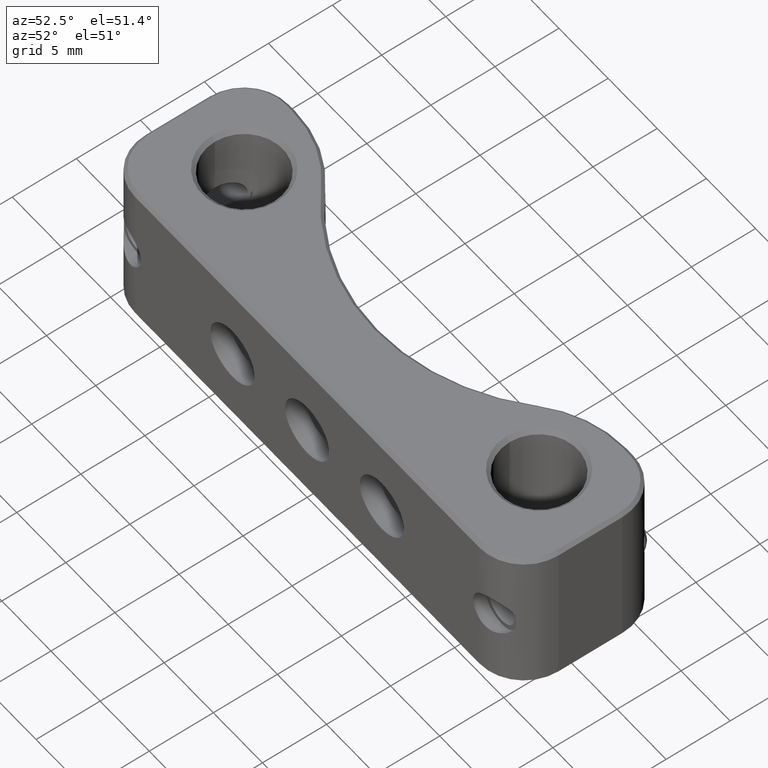
[diagram: clean part render]
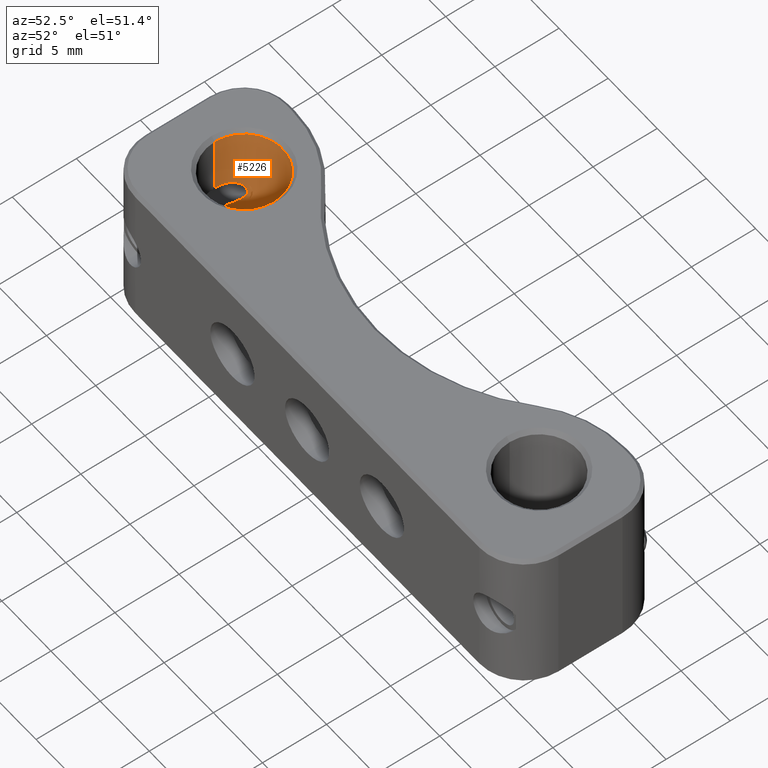
[diagram: same view with one face highlighted and labeled with its STEP entity id]
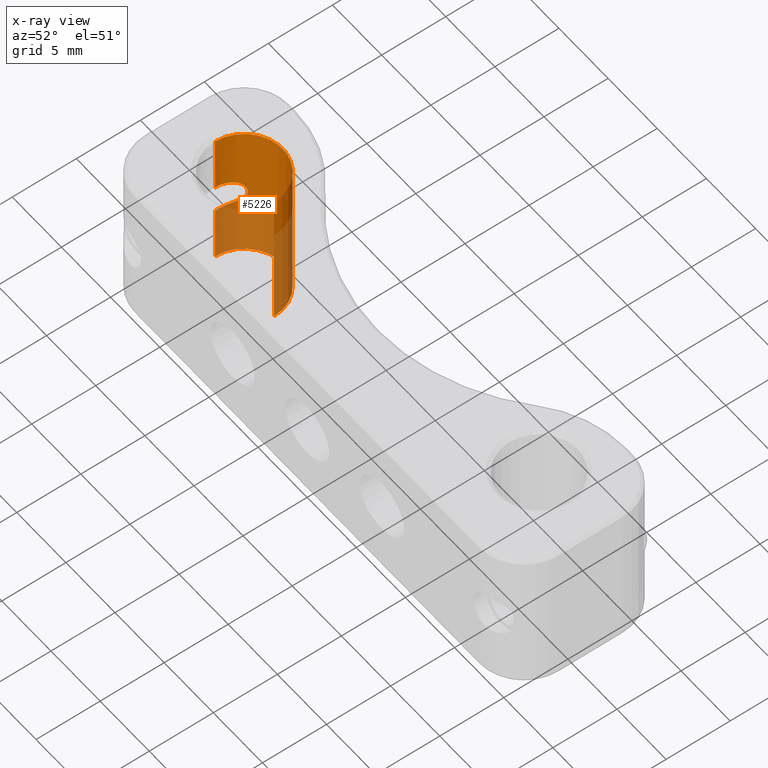
[diagram: x-ray of the same camera — body ghosted, the highlighted face saturated]
A machine part, auxiliary view. The second image highlights one B-rep face of the part: STEP entity #5226.
The next image is the same camera in x-ray: the body ghosted, the highlighted face saturated — about 45% of this face is hidden behind the body in this view.
In plain terms, the highlighted cylindrical surface (partial cylindrical patch) has radius 3 mm, axis along (-0, -0, 1).
Its self-contained STEP definition (entity closure, byte-faithful):
#142 = ORIENTED_EDGE ( 'NONE', *, *, #1548, .T. ) ;
#229 = CARTESIAN_POINT ( 'NONE',  ( -12.00000000000000000, 6.599999999999994316, 5.700000000000001954 ) ) ;
#279 = EDGE_CURVE ( 'NONE', #2027, #4380, #2898, .T. ) ;
#280 = LINE ( 'NONE', #4411, #2575 ) ;
#297 = CARTESIAN_POINT ( 'NONE',  ( -17.24980385955308648, 8.584535886095892465, -0.1108653764750437976 ) ) ;
#336 = CARTESIAN_POINT ( 'NONE',  ( -18.00000000000000000, 6.599999999999995204, -1.145643923738955072 ) ) ;
#412 = CARTESIAN_POINT ( 'NONE',  ( -15.00000000000000000, 6.599999999999994316, 5.700000000000001954 ) ) ;
#557 = CARTESIAN_POINT ( 'NONE',  ( -17.51001691426520068, 8.245981399640767151, 0.7670206668615029422 ) ) ;
#610 = CARTESIAN_POINT ( 'NONE',  ( -17.79832670477783552, 7.702060113955485399, -1.041259850947870547 ) ) ;
#626 = CARTESIAN_POINT ( 'NONE',  ( -17.97398328670919909, 7.053058011318580789, -1.135327389055339475 ) ) ;
#752 = CARTESIAN_POINT ( 'NONE',  ( -17.26568490033655934, 8.566886640758495375, -0.2252146043956913535 ) ) ;
#797 = EDGE_CURVE ( 'NONE', #2980, #2547, #4962, .T. ) ;
#895 = AXIS2_PLACEMENT_3D ( 'NONE', #3772, #1015, #4310 ) ;
#991 = CARTESIAN_POINT ( 'NONE',  ( -17.61125896049234285, 8.080123751282044964, 0.8823415314539532206 ) ) ;
#1011 = AXIS2_PLACEMENT_3D ( 'NONE', #5417, #2670, #5808 ) ;
#1015 = DIRECTION ( 'NONE',  ( -0.000000000000000000, -0.000000000000000000, -1.000000000000000000 ) ) ;
#1076 = CARTESIAN_POINT ( 'NONE',  ( -17.87417021065662226, 7.488247573269766200, -1.083512315468033504 ) ) ;
#1100 = CARTESIAN_POINT ( 'NONE',  ( -18.00000000000000711, 6.827326079784697299, -1.145643923738954850 ) ) ;
#1298 = CARTESIAN_POINT ( 'NONE',  ( -12.00000000000000000, 6.599999999999994316, -5.699999999999998401 ) ) ;
#1320 = CARTESIAN_POINT ( 'NONE',  ( -18.00000000000000000, 6.599999999999994316, -6.000000000000000000 ) ) ;
#1351 = CARTESIAN_POINT ( 'NONE',  ( -18.00000000000000000, 6.599999999999994316, -6.000000000000000000 ) ) ;
#1451 = CARTESIAN_POINT ( 'NONE',  ( -17.45793171150145184, 8.321811289895453712, 0.6967504193350860797 ) ) ;
#1469 = CARTESIAN_POINT ( 'NONE',  ( -17.36530753841010011, 8.446992870900217554, 0.5327668179879200272 ) ) ;
#1541 = ORIENTED_EDGE ( 'NONE', *, *, #2292, .F. ) ;
#1548 = EDGE_CURVE ( 'NONE', #4715, #2291, #3011, .T. ) ;
#1604 = CARTESIAN_POINT ( 'NONE',  ( -18.00000000000000000, 6.599999999999994316, 1.145643923738983494 ) ) ;
#1771 = VECTOR ( 'NONE', #5541, 1000.000000000000000 ) ;
#1940 = CARTESIAN_POINT ( 'NONE',  ( -17.32378804373208325, 8.497888776046480075, 0.4365183337865149449 ) ) ;
#1974 = CARTESIAN_POINT ( 'NONE',  ( -18.00000000000000000, 6.599999999999994316, 1.145643923738983494 ) ) ;
#1995 = CARTESIAN_POINT ( 'NONE',  ( -17.36400416248977052, 8.448686977657384745, -0.5301717039955806676 ) ) ;
#2027 = VERTEX_POINT ( 'NONE', #1604 ) ;
#2186 = LINE ( 'NONE', #1351, #3489 ) ;
#2195 = LINE ( 'NONE', #1320, #1771 ) ;
#2291 = VERTEX_POINT ( 'NONE', #1298 ) ;
#2292 = EDGE_CURVE ( 'NONE', #4715, #4380, #2195, .T. ) ;
#2310 = DIRECTION ( 'NONE',  ( -1.000000000000000000, 0.000000000000000000, 0.000000000000000000 ) ) ;
#2381 = CARTESIAN_POINT ( 'NONE',  ( -17.26658560558593791, 8.565849020394512792, 0.2295904036573104823 ) ) ;
#2470 = EDGE_LOOP ( 'NONE', ( #1541, #142, #2839, #5547, #2732, #2865 ) ) ;
#2547 = VERTEX_POINT ( 'NONE', #5733 ) ;
#2575 = VECTOR ( 'NONE', #4385, 1000.000000000000000 ) ;
#2670 = DIRECTION ( 'NONE',  ( -0.000000000000000000, -0.000000000000000000, 1.000000000000000000 ) ) ;
#2732 = ORIENTED_EDGE ( 'NONE', *, *, #5896, .F. ) ;
#2813 = CARTESIAN_POINT ( 'NONE',  ( -17.97465997322915499, 7.049270152620655594, 1.135646738877305939 ) ) ;
#2832 = CARTESIAN_POINT ( 'NONE',  ( -18.00000000000000000, 6.826436813385469371, 1.145643923738959291 ) ) ;
#2839 = ORIENTED_EDGE ( 'NONE', *, *, #5586, .T. ) ;
#2865 = ORIENTED_EDGE ( 'NONE', *, *, #279, .T. ) ;
#2898 = B_SPLINE_CURVE_WITH_KNOTS ( 'NONE', 3,
 ( #1974, #2832, #2813, #5167, #3748, #4664, #991, #557, #1451, #1469, #1940, #2381, #3046, #297, #752, #3990, #1995, #4420, #5319, #610, #1076, #626, #1100, #4309 ),
 .UNSPECIFIED., .F., .F.,
 ( 4, 2, 2, 2, 2, 2, 2, 2, 2, 2, 2, 4 ),
 ( 0.005380759176983526508, 0.006053046435307254947, 0.006725333693630984253, 0.007061477322792854977, 0.007397620951954725702, 0.007733764581116596426, 0.008069908210278467151, 0.008406051839440337875, 0.008742195468602208600, 0.009414482726925953518, 0.01008676998524969670, 0.01075905724357344162 ),
 .UNSPECIFIED. ) ;
#2900 = AXIS2_PLACEMENT_3D ( 'NONE', #412, #5474, #2310 ) ;
#2980 = VERTEX_POINT ( 'NONE', #229 ) ;
#3011 = CIRCLE ( 'NONE', #895, 2.999999999999999112 ) ;
#3046 = CARTESIAN_POINT ( 'NONE',  ( -17.25019997677063799, 8.584086730514522756, 0.1152450572701383125 ) ) ;
#3489 = VECTOR ( 'NONE', #4174, 1000.000000000000000 ) ;
#3748 = CARTESIAN_POINT ( 'NONE',  ( -17.79973059604520813, 7.698772932943366065, 1.042267220824783402 ) ) ;
#3772 = CARTESIAN_POINT ( 'NONE',  ( -15.00000000000000000, 6.599999999999994316, -5.699999999999998401 ) ) ;
#3921 = CARTESIAN_POINT ( 'NONE',  ( -18.00000000000000000, 6.599999999999994316, -5.699999999999998401 ) ) ;
#3990 = CARTESIAN_POINT ( 'NONE',  ( -17.32289631463169144, 8.498979683060831292, -0.4343757557491292332 ) ) ;
#4174 = DIRECTION ( 'NONE',  ( -0.000000000000000000, -0.000000000000000000, 1.000000000000000000 ) ) ;
#4309 = CARTESIAN_POINT ( 'NONE',  ( -18.00000000000000000, 6.599999999999995204, -1.145643923738955072 ) ) ;
#4310 = DIRECTION ( 'NONE',  ( -1.000000000000000000, 0.000000000000000000, 0.000000000000000000 ) ) ;
#4380 = VERTEX_POINT ( 'NONE', #336 ) ;
#4385 = DIRECTION ( 'NONE',  ( -0.000000000000000000, -0.000000000000000000, 1.000000000000000000 ) ) ;
#4411 = CARTESIAN_POINT ( 'NONE',  ( -12.00000000000000000, 6.599999999999994316, -6.000000000000000000 ) ) ;
#4420 = CARTESIAN_POINT ( 'NONE',  ( -17.50414104750602817, 8.259492241829823556, -0.7791272431139423249 ) ) ;
#4664 = CARTESIAN_POINT ( 'NONE',  ( -17.66150042357771710, 7.988475364363990749, 0.9289607148689995597 ) ) ;
#4715 = VERTEX_POINT ( 'NONE', #3921 ) ;
#4962 = CIRCLE ( 'NONE', #2900, 2.999999999999999112 ) ;
#5167 = CARTESIAN_POINT ( 'NONE',  ( -17.87460341636440120, 7.487187029319942511, 1.083768781810574566 ) ) ;
#5226 = ADVANCED_FACE ( 'NONE', ( #5726 ), #5498, .F. ) ;
#5319 = CARTESIAN_POINT ( 'NONE',  ( -17.61501151021237632, 8.085558360651354803, -0.8907091912444435877 ) ) ;
#5417 = CARTESIAN_POINT ( 'NONE',  ( -15.00000000000000000, 6.599999999999994316, -6.000000000000000000 ) ) ;
#5474 = DIRECTION ( 'NONE',  ( 0.000000000000000000, 0.000000000000000000, 1.000000000000000000 ) ) ;
#5498 = CYLINDRICAL_SURFACE ( 'NONE', #1011, 2.999999999999999112 ) ;
#5541 = DIRECTION ( 'NONE',  ( -0.000000000000000000, -0.000000000000000000, 1.000000000000000000 ) ) ;
#5547 = ORIENTED_EDGE ( 'NONE', *, *, #797, .T. ) ;
#5586 = EDGE_CURVE ( 'NONE', #2291, #2980, #280, .T. ) ;
#5726 = FACE_OUTER_BOUND ( 'NONE', #2470, .T. ) ;
#5733 = CARTESIAN_POINT ( 'NONE',  ( -18.00000000000000000, 6.599999999999994316, 5.700000000000001954 ) ) ;
#5808 = DIRECTION ( 'NONE',  ( 1.000000000000000000, 0.000000000000000000, 0.000000000000000000 ) ) ;
#5896 = EDGE_CURVE ( 'NONE', #2027, #2547, #2186, .T. ) ;